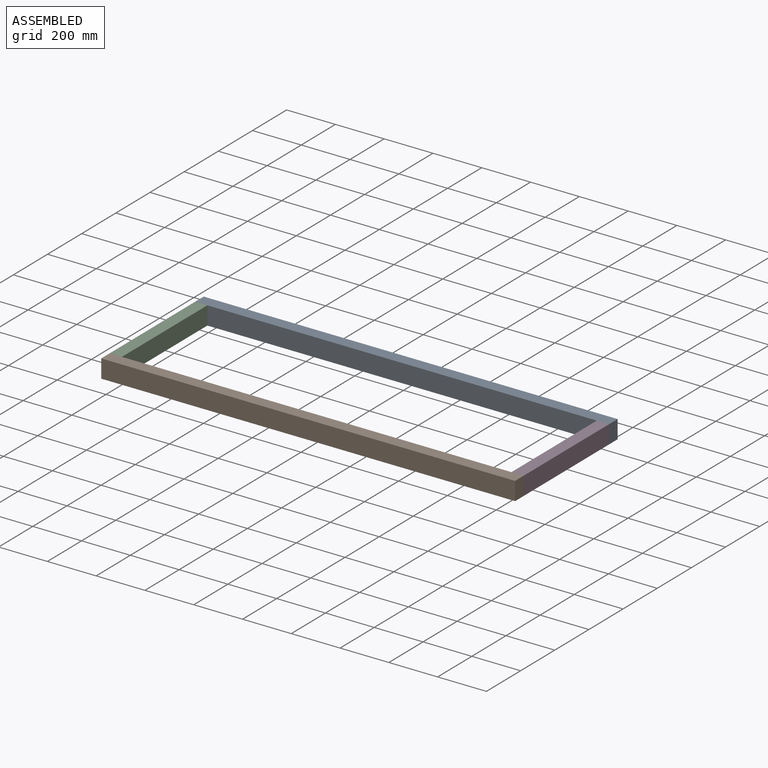
[diagram: assembled view]
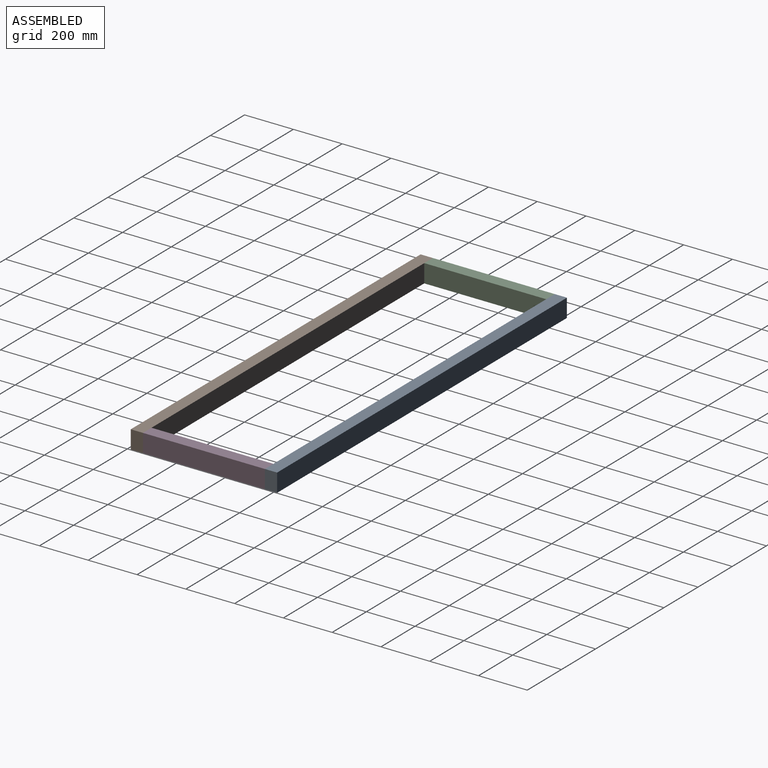
[diagram: assembled view, second angle]
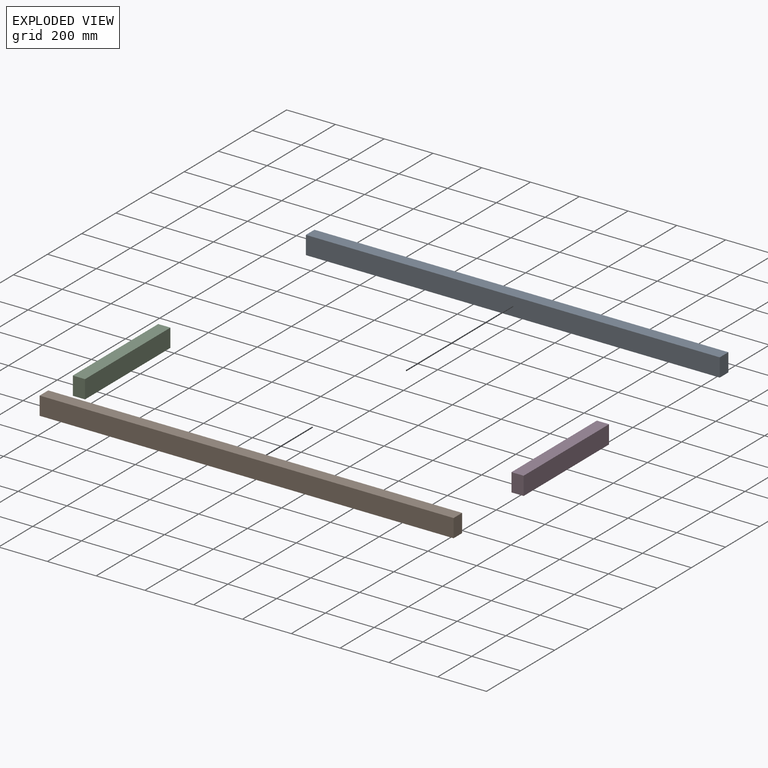
[diagram: exploded view]
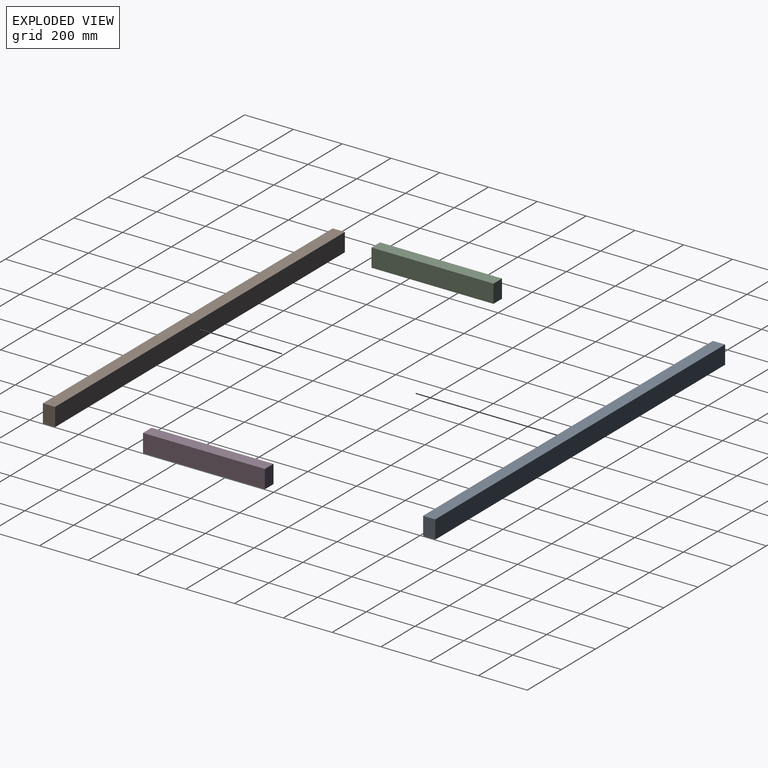
[diagram: exploded view, second angle]
ASSEMBLY  parts=4 mates=3
PART A: 6 faces, bbox 1697x50x75 mm
  f0: plane 1697x50mm, normal (0,0,-1), area 84850mm2, adj f1,f3,f4,f5
  f1: plane 1697x75mm, normal (0,1,0), area 127275mm2, adj f0,f2,f4,f5
  f2: plane 1697x50mm, normal (0,0,1), area 84850mm2, adj f1,f3,f4,f5
  f3: plane 1697x75mm, normal (0,-1,0), area 127275mm2, adj f0,f2,f4,f5
  f4: plane 75x50mm, normal (1,0,0), area 3750mm2, adj f0,f1,f2,f3
  f5: plane 75x50mm, normal (-1,0,0), area 3750mm2, adj f0,f1,f2,f3
PART B: same geometry as A
PART C: 6 faces, bbox 50x500x75 mm
  f0: plane 500x50mm, normal (0,0,-1), area 25000mm2, adj f1,f3,f4,f5
  f1: plane 500x75mm, normal (1,0,0), area 37500mm2, adj f0,f2,f4,f5
  f2: plane 500x50mm, normal (0,0,1), area 25000mm2, adj f1,f3,f4,f5
  f3: plane 500x75mm, normal (-1,0,0), area 37500mm2, adj f0,f2,f4,f5
  f4: plane 75x50mm, normal (0,-1,0), area 3750mm2, adj f0,f1,f2,f3
  f5: plane 75x50mm, normal (0,1,0), area 3750mm2, adj f0,f1,f2,f3
PART D: same geometry as C
PLACE A t=(-251.73,220.92,-185.43)mm
PLACE B t=(-251.73,-329.08,-185.43)mm
PLACE C t=(-226.73,195.92,-185.43)mm
PLACE D t=(1420.27,195.92,-185.43)mm
MATE fastened B.f1 <-> C.f4  axis (0,1,0) through (-251.73,-304.08,-185.43)mm
MATE fastened D.f5 <-> A.f3  axis (0,1,0) through (1445.27,195.92,-185.43)mm
MATE fastened C.f5 <-> A.f3  axis (0,1,0) through (-251.73,195.92,-185.43)mm
